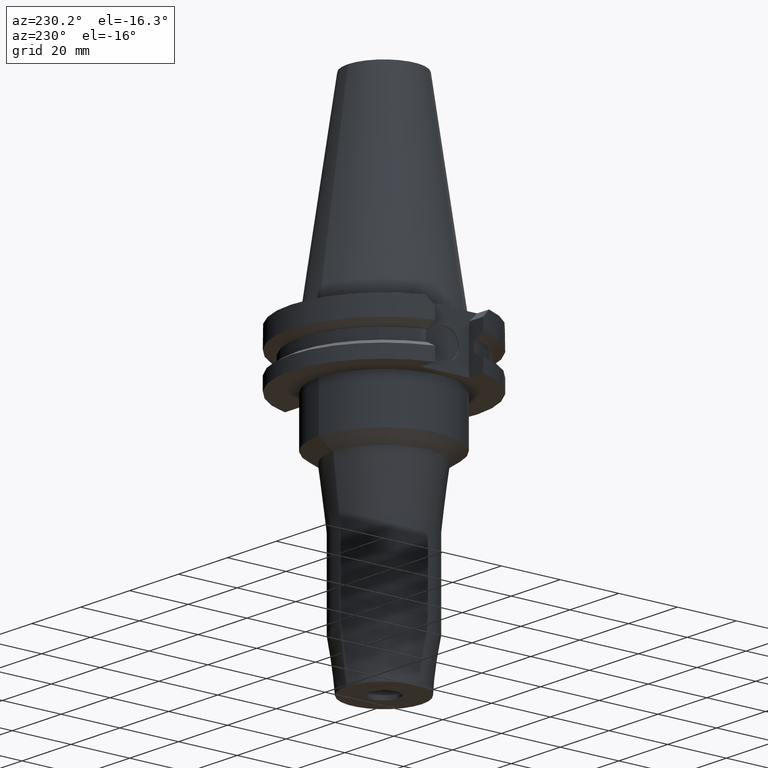
[diagram: clean part render]
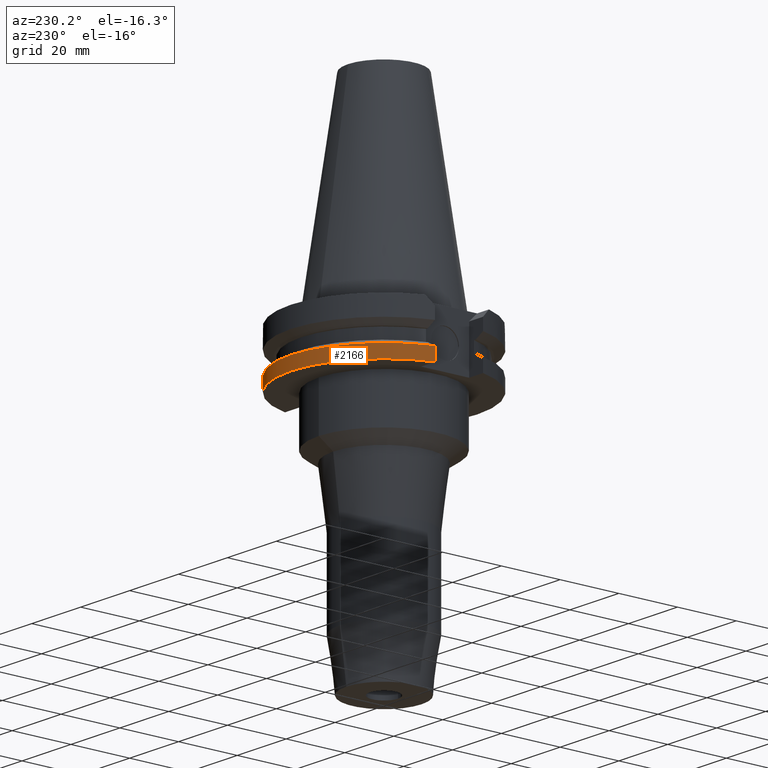
[diagram: same view with one face highlighted and labeled with its STEP entity id]
A machine part, auxiliary view. The second image highlights one B-rep face of the part: STEP entity #2166.
In plain terms, the highlighted cylindrical surface (partial cylindrical patch) has radius 31.75 mm, axis along (0, 0, -1).
Its self-contained STEP definition (entity closure, byte-faithful):
#527=CARTESIAN_POINT('',(0.E0,2.164471368983E-14,-1.905E1));
#528=DIRECTION('',(0.E0,0.E0,1.E0));
#529=DIRECTION('',(9.661575315241E-1,2.579527559055E-1,0.E0));
#530=AXIS2_PLACEMENT_3D('',#527,#528,#529);
#535=CARTESIAN_POINT('',(0.E0,2.164471368983E-14,-1.905E1));
#536=DIRECTION('',(0.E0,0.E0,1.E0));
#537=DIRECTION('',(0.E0,1.E0,0.E0));
#538=AXIS2_PLACEMENT_3D('',#535,#536,#537);
#768=DIRECTION('',(7.635422907236E-9,-2.859777451327E-8,1.E0));
#769=VECTOR('',#768,4.396334354415E0);
#770=CARTESIAN_POINT('',(3.067550162589E1,8.19E0,-1.905E1));
#771=LINE('',#770,#769);
#775=DIRECTION('',(-3.682766588360E-8,-1.379379395879E-7,-1.E0));
#776=VECTOR('',#775,4.396327811836E0);
#777=CARTESIAN_POINT('',(-3.067550146398E1,8.190000606420E0,-1.465367218816E1));
#778=LINE('',#777,#776);
#1242=CARTESIAN_POINT('',(0.E0,1.055026073065E-14,-1.465366676908E1));
#1243=DIRECTION('',(0.E0,0.E0,-1.E0));
#1244=DIRECTION('',(-9.661575315241E-1,2.579527559055E-1,0.E0));
#1245=AXIS2_PLACEMENT_3D('',#1242,#1243,#1244);
#1250=CARTESIAN_POINT('',(0.E0,1.055026073065E-14,-1.465366676908E1));
#1251=DIRECTION('',(0.E0,0.E0,-1.E0));
#1252=DIRECTION('',(0.E0,1.E0,0.E0));
#1253=AXIS2_PLACEMENT_3D('',#1250,#1251,#1252);
#1376=CARTESIAN_POINT('',(3.067550162589E1,8.19E0,-1.905E1));
#1377=VERTEX_POINT('',#1376);
#1378=CARTESIAN_POINT('',(-1.540277123354E-14,3.175E1,-1.905E1));
#1379=CARTESIAN_POINT('',(-3.067550162589E1,8.19E0,-1.905E1));
#1380=VERTEX_POINT('',#1378);
#1381=VERTEX_POINT('',#1379);
#1416=CARTESIAN_POINT('',(3.067550165946E1,8.189999874275E0,-1.465366564559E1));
#1417=VERTEX_POINT('',#1416);
#1418=CARTESIAN_POINT('',(-3.067550162589E1,8.190000000001E0,
-1.465366676908E1));
#1419=CARTESIAN_POINT('',(0.E0,3.175E1,-1.465366676908E1));
#1420=VERTEX_POINT('',#1418);
#1421=VERTEX_POINT('',#1419);
#2150=CARTESIAN_POINT('',(0.E0,2.164471368983E-14,7.67425E1));
#2151=DIRECTION('',(0.E0,0.E0,-1.E0));
#2152=DIRECTION('',(0.E0,-1.E0,0.E0));
#2153=AXIS2_PLACEMENT_3D('',#2150,#2151,#2152);
#2154=CYLINDRICAL_SURFACE('',#2153,3.175E1);
#2156=ORIENTED_EDGE('',*,*,#2155,.T.);
#2158=ORIENTED_EDGE('',*,*,#2157,.F.);
#2160=ORIENTED_EDGE('',*,*,#2159,.F.);
#2161=ORIENTED_EDGE('',*,*,#2130,.T.);
#2162=ORIENTED_EDGE('',*,*,#1991,.F.);
#2163=ORIENTED_EDGE('',*,*,#1989,.F.);
#2164=EDGE_LOOP('',(#2156,#2158,#2160,#2161,#2162,#2163));
#2165=FACE_OUTER_BOUND('',#2164,.F.);
#531=CIRCLE('',#530,3.175E1);
#539=CIRCLE('',#538,3.175E1);
#1246=CIRCLE('',#1245,3.175E1);
#1254=CIRCLE('',#1253,3.175E1);
#1989=EDGE_CURVE('',#1377,#1380,#531,.T.);
#1991=EDGE_CURVE('',#1380,#1381,#539,.T.);
#2130=EDGE_CURVE('',#1420,#1381,#778,.T.);
#2155=EDGE_CURVE('',#1377,#1417,#771,.T.);
#2157=EDGE_CURVE('',#1421,#1417,#1254,.T.);
#2159=EDGE_CURVE('',#1420,#1421,#1246,.T.);
#2166=ADVANCED_FACE('',(#2165),#2154,.T.);